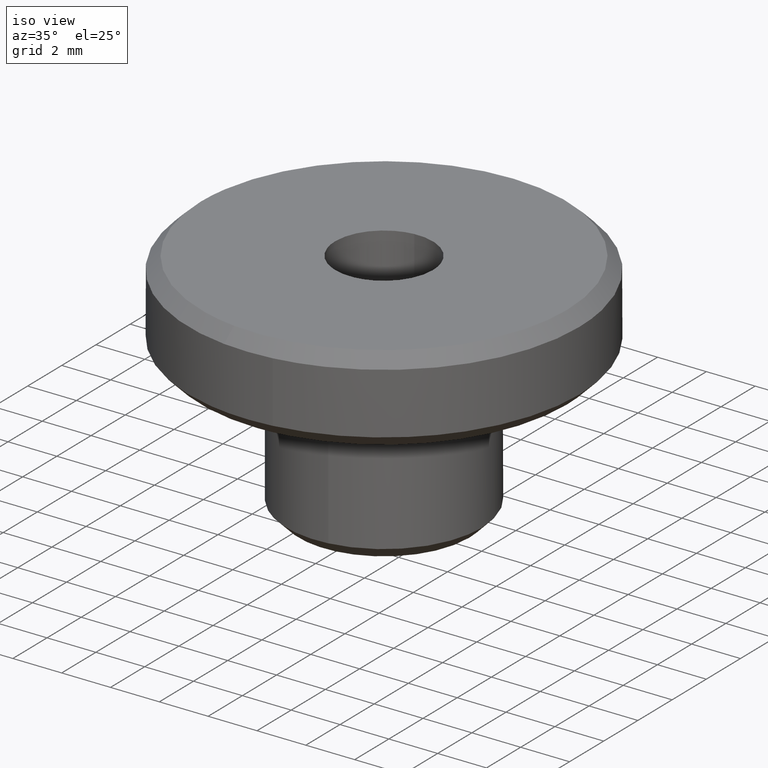
[diagram: clean part render]
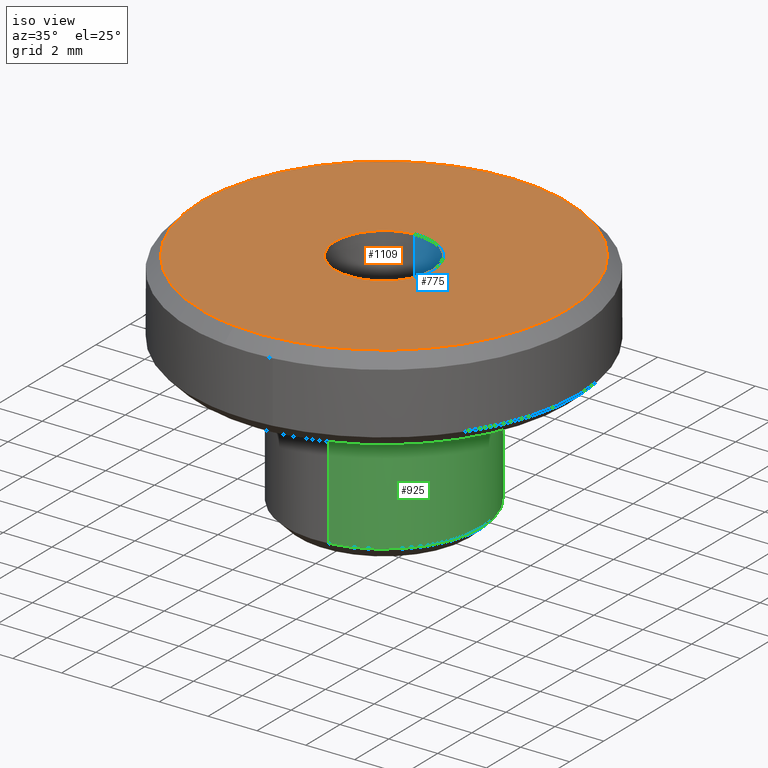
[diagram: same view with three faces highlighted in distinct colors, each labeled with its STEP entity id]
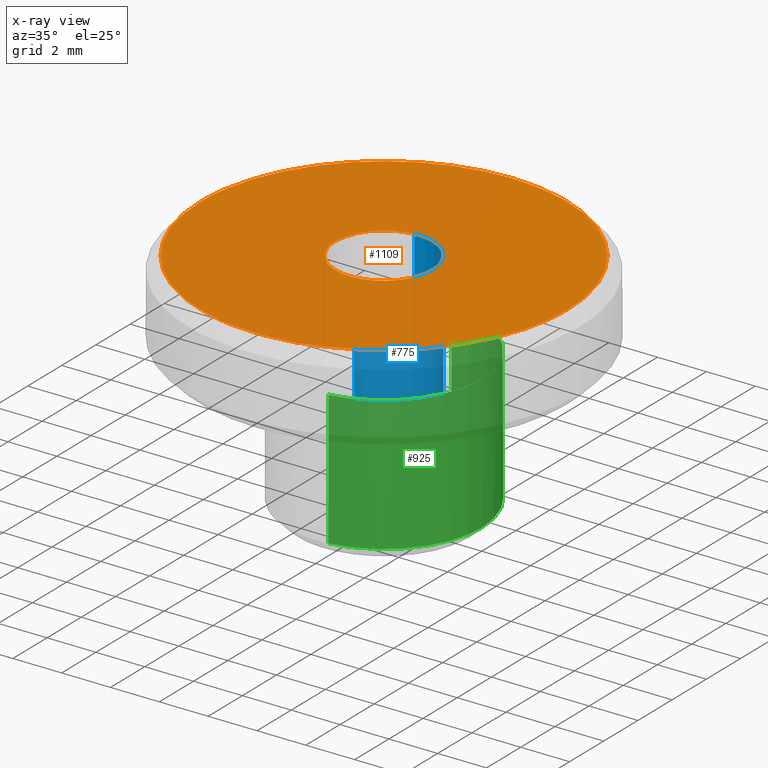
[diagram: x-ray of the same camera — body ghosted, the three highlighted faces saturated]
A machine part, iso view with three faces highlighted in distinct colors.
The next image is the same camera in x-ray (body ghosted, the three faces saturated) — at least one of them is partly hidden behind the body in this view.
Their STEP definitions:

[orange] entity #1109 — the highlighted face is a freeform B-spline surface patch.
#79=CARTESIAN_POINT('',(-0.930960015612381,-7.441996603691548,9.499999999998270));
#80=VERTEX_POINT('',#79);
#86=CARTESIAN_POINT('',(-7.500000000000010,0.0,9.500000000000000));
#87=VERTEX_POINT('',#86);
#88=CARTESIAN_POINT('',(-7.500000000000010,0.0,9.500000000000000));
#89=CARTESIAN_POINT('',(-7.500000000000008,-6.620239501102615,9.499999999999998));
#90=CARTESIAN_POINT('',(-0.930960015612380,-7.441996603691548,9.499999999998270));
#98=(BOUNDED_CURVE()B_SPLINE_CURVE(2,(#88,#89,#90),.UNSPECIFIED.,.F.,.U.)B_SPLINE_CURVE_WITH_KNOTS((3,3),(0.500000000000000,0.728526071028690),.UNSPECIFIED.)CURVE()GEOMETRIC_REPRESENTATION_ITEM()RATIONAL_B_SPLINE_CURVE((1.0,0.732265053894462,0.954005430273536))REPRESENTATION_ITEM(''));
#99=EDGE_CURVE('',#87,#80,#98,.T.);
#101=CARTESIAN_POINT('',(0.065449016252098,7.499714422983092,9.499999999998039));
#102=VERTEX_POINT('',#101);
#103=CARTESIAN_POINT('',(0.065449016252098,7.499714422983092,9.499999999998039));
#104=CARTESIAN_POINT('',(0.032725131169539,7.500000000000001,9.500000000000000));
#105=CARTESIAN_POINT('',(-1.065814E-014,7.500000000000000,9.500000000000000));
#106=CARTESIAN_POINT('',(-7.500000000000009,7.500000000000000,9.500000000000000));
#107=CARTESIAN_POINT('',(-7.500000000000010,0.0,9.500000000000000));
#115=(BOUNDED_CURVE()B_SPLINE_CURVE(2,(#103,#104,#105,#106,#107),.UNSPECIFIED.,.F.,.U.)B_SPLINE_CURVE_WITH_KNOTS((3,2,3),(0.248460105664342,0.250000000000000,0.500000000000000),.UNSPECIFIED.)CURVE()GEOMETRIC_REPRESENTATION_ITEM()RATIONAL_B_SPLINE_CURVE((0.996414028098853,0.998195901565586,1.0,0.707106781186547,1.0))REPRESENTATION_ITEM(''));
#116=EDGE_CURVE('',#102,#87,#115,.T.);
#226=CARTESIAN_POINT('',(7.499999999999989,0.0,9.500000000000000));
#227=VERTEX_POINT('',#226);
#228=CARTESIAN_POINT('',(7.499999999999989,0.0,9.500000000000000));
#229=CARTESIAN_POINT('',(7.499999999999988,7.434834079434003,9.500000000000000));
#230=CARTESIAN_POINT('',(0.065449016252098,7.499714422983092,9.499999999998039));
#238=(BOUNDED_CURVE()B_SPLINE_CURVE(2,(#228,#229,#230),.UNSPECIFIED.,.F.,.U.)B_SPLINE_CURVE_WITH_KNOTS((3,3),(0.0,0.248460105664342),.UNSPECIFIED.)CURVE()GEOMETRIC_REPRESENTATION_ITEM()RATIONAL_B_SPLINE_CURVE((1.0,0.708910879620962,0.996414028098852))REPRESENTATION_ITEM(''));
#239=EDGE_CURVE('',#227,#102,#238,.T.);
#241=CARTESIAN_POINT('',(-0.930960015612381,-7.441996603691548,9.499999999998270));
#242=CARTESIAN_POINT('',(-0.467286956514814,-7.500000000000000,9.500000000000000));
#243=CARTESIAN_POINT('',(-1.065814E-014,-7.500000000000000,9.500000000000000));
#244=CARTESIAN_POINT('',(7.499999999999989,-7.500000000000000,9.500000000000000));
#245=CARTESIAN_POINT('',(7.499999999999989,0.0,9.500000000000000));
#253=(BOUNDED_CURVE()B_SPLINE_CURVE(2,(#241,#242,#243,#244,#245),.UNSPECIFIED.,.F.,.U.)B_SPLINE_CURVE_WITH_KNOTS((3,2,3),(0.728526071028690,0.750000000000000,1.0),.UNSPECIFIED.)CURVE()GEOMETRIC_REPRESENTATION_ITEM()RATIONAL_B_SPLINE_CURVE((0.954005430273537,0.974841727292086,1.0,0.707106781186547,1.0))REPRESENTATION_ITEM(''));
#254=EDGE_CURVE('',#80,#227,#253,.T.);
#712=CARTESIAN_POINT('',(0.156918191470717,-1.993834667465072,9.500000000000000));
#713=VERTEX_POINT('',#712);
#719=CARTESIAN_POINT('',(1.999999999999989,0.0,9.500000000000000));
#720=VERTEX_POINT('',#719);
#721=CARTESIAN_POINT('',(1.999999999999989,0.0,9.500000000000000));
#722=CARTESIAN_POINT('',(1.999999999999990,-1.848780983288440,9.500000000000000));
#723=CARTESIAN_POINT('',(0.156918191470717,-1.993834667465072,9.500000000000000));
#731=(BOUNDED_CURVE()B_SPLINE_CURVE(2,(#721,#722,#723),.UNSPECIFIED.,.F.,.U.)B_SPLINE_CURVE_WITH_KNOTS((3,3),(0.0,0.236331300630181),.UNSPECIFIED.)CURVE()GEOMETRIC_REPRESENTATION_ITEM()RATIONAL_B_SPLINE_CURVE((1.0,0.723120658608226,0.969723356166419))REPRESENTATION_ITEM(''));
#732=EDGE_CURVE('',#720,#713,#731,.T.);
#734=CARTESIAN_POINT('',(-0.156918191470738,1.993834667465072,9.500000000000000));
#735=VERTEX_POINT('',#734);
#736=CARTESIAN_POINT('',(-0.156918191470738,1.993834667465073,9.500000000000000));
#737=CARTESIAN_POINT('',(-0.078580214030456,2.0,9.500000000000002));
#738=CARTESIAN_POINT('',(-1.065814E-014,2.0,9.500000000000000));
#739=CARTESIAN_POINT('',(1.999999999999989,2.000000000000000,9.500000000000000));
#740=CARTESIAN_POINT('',(1.999999999999989,0.0,9.500000000000000));
#748=(BOUNDED_CURVE()B_SPLINE_CURVE(2,(#736,#737,#738,#739,#740),.UNSPECIFIED.,.F.,.U.)B_SPLINE_CURVE_WITH_KNOTS((3,2,3),(0.736331300630181,0.750000000000000,1.0),.UNSPECIFIED.)CURVE()GEOMETRIC_REPRESENTATION_ITEM()RATIONAL_B_SPLINE_CURVE((0.969723356166419,0.983986122578322,1.0,0.707106781186548,1.0))REPRESENTATION_ITEM(''));
#749=EDGE_CURVE('',#735,#720,#748,.T.);
#825=CARTESIAN_POINT('',(-2.000000000000011,0.0,9.500000000000000));
#826=VERTEX_POINT('',#825);
#827=CARTESIAN_POINT('',(-2.000000000000011,0.0,9.500000000000000));
#828=CARTESIAN_POINT('',(-2.000000000000012,1.848780983288445,9.500000000000000));
#829=CARTESIAN_POINT('',(-0.156918191470738,1.993834667465073,9.500000000000000));
#837=(BOUNDED_CURVE()B_SPLINE_CURVE(2,(#827,#828,#829),.UNSPECIFIED.,.F.,.U.)B_SPLINE_CURVE_WITH_KNOTS((3,3),(0.500000000000000,0.736331300630181),.UNSPECIFIED.)CURVE()GEOMETRIC_REPRESENTATION_ITEM()RATIONAL_B_SPLINE_CURVE((1.0,0.723120658608226,0.969723356166420))REPRESENTATION_ITEM(''));
#838=EDGE_CURVE('',#826,#735,#837,.T.);
#840=CARTESIAN_POINT('',(0.156918191470717,-1.993834667465073,9.500000000000000));
#841=CARTESIAN_POINT('',(0.078580214030436,-2.000000000000000,9.500000000000000));
#842=CARTESIAN_POINT('',(-1.065814E-014,-2.0,9.500000000000000));
#843=CARTESIAN_POINT('',(-2.000000000000011,-2.000000000000000,9.500000000000000));
#844=CARTESIAN_POINT('',(-2.000000000000011,0.0,9.500000000000000));
#852=(BOUNDED_CURVE()B_SPLINE_CURVE(2,(#840,#841,#842,#843,#844),.UNSPECIFIED.,.F.,.U.)B_SPLINE_CURVE_WITH_KNOTS((3,2,3),(0.236331300630181,0.250000000000000,0.500000000000000),.UNSPECIFIED.)CURVE()GEOMETRIC_REPRESENTATION_ITEM()RATIONAL_B_SPLINE_CURVE((0.969723356166419,0.983986122578321,1.0,0.707106781186548,1.0))REPRESENTATION_ITEM(''));
#853=EDGE_CURVE('',#713,#826,#852,.T.);
#1092=CARTESIAN_POINT('',(-8.249249970927099,-8.248721004380286,9.500000000000000));
#1093=CARTESIAN_POINT('',(8.249250373258430,-8.248721004380286,9.500000000000000));
#1094=CARTESIAN_POINT('',(-8.249249970927099,8.248925120486318,9.500000000000000));
#1095=CARTESIAN_POINT('',(8.249250373258430,8.248925120486318,9.500000000000000));
#1096=B_SPLINE_SURFACE_WITH_KNOTS('',1,1,((#1092,#1094),(#1093,#1095)),.UNSPECIFIED.,.F.,.F.,.U.,(2,2),(2,2),(0.0,16.498500344185530),(0.0,16.497646124866609),.UNSPECIFIED.);
#1097=ORIENTED_EDGE('',*,*,#239,.T.);
#1098=ORIENTED_EDGE('',*,*,#116,.T.);
#1099=ORIENTED_EDGE('',*,*,#99,.T.);
#1100=ORIENTED_EDGE('',*,*,#254,.T.);
#1101=EDGE_LOOP('',(#1097,#1098,#1099,#1100));
#1102=FACE_OUTER_BOUND('',#1101,.T.);
#1103=ORIENTED_EDGE('',*,*,#838,.T.);
#1104=ORIENTED_EDGE('',*,*,#749,.T.);
#1105=ORIENTED_EDGE('',*,*,#732,.T.);
#1106=ORIENTED_EDGE('',*,*,#853,.T.);
#1107=EDGE_LOOP('',(#1103,#1104,#1105,#1106));
#1108=FACE_BOUND('',#1107,.T.);
#1109=ADVANCED_FACE('',(#1102,#1108),#1096,.T.);

[blue] entity #775 — the highlighted face is a freeform B-spline surface patch.
#677=CARTESIAN_POINT('',(0.156918191455680,-1.993834667466255,-0.237500000000000));
#678=CARTESIAN_POINT('',(2.150752858921936,-1.836916476010564,-0.237500000000000));
#679=CARTESIAN_POINT('',(1.993834667466245,0.156918191455691,-0.237500000000000));
#680=CARTESIAN_POINT('',(1.836916476010554,2.150752858921946,-0.237500000000000));
#681=CARTESIAN_POINT('',(-0.156918191455702,1.993834667466255,-0.237500000000000));
#682=CARTESIAN_POINT('',(0.156918191455680,-1.993834667466255,9.743437500000001));
#683=CARTESIAN_POINT('',(2.150752858921936,-1.836916476010564,9.743437500000001));
#684=CARTESIAN_POINT('',(1.993834667466245,0.156918191455691,9.743437500000001));
#685=CARTESIAN_POINT('',(1.836916476010554,2.150752858921946,9.743437500000001));
#686=CARTESIAN_POINT('',(-0.156918191455702,1.993834667466255,9.743437500000001));
#694=(BOUNDED_SURFACE()B_SPLINE_SURFACE(2,1,((#677,#682),(#678,#683),(#679,#684),(#680,#685),(#681,#686)),.UNSPECIFIED.,.F.,.F.,.U.)B_SPLINE_SURFACE_WITH_KNOTS((3,2,3),(2,2),(0.0,3.313708498984759,6.627416997969519),(0.0,9.980937500000003),.UNSPECIFIED.)GEOMETRIC_REPRESENTATION_ITEM()RATIONAL_B_SPLINE_SURFACE(((1.0,1.0),(0.707106781186548,0.707106781186548),(1.0,1.0),(0.707106781186548,0.707106781186548),(1.0,1.0)))REPRESENTATION_ITEM('')SURFACE());
#695=CARTESIAN_POINT('',(1.999999999999989,0.0,0.0));
#696=VERTEX_POINT('',#695);
#697=CARTESIAN_POINT('',(0.156918191470717,-1.993834667465072,-3.608225E-016));
#698=VERTEX_POINT('',#697);
#699=CARTESIAN_POINT('',(1.999999999999989,0.0,0.0));
#700=CARTESIAN_POINT('',(1.999999999999989,-1.848780983288442,0.0));
#701=CARTESIAN_POINT('',(0.156918191470717,-1.993834667465072,-3.608225E-016));
#709=(BOUNDED_CURVE()B_SPLINE_CURVE(2,(#699,#700,#701),.UNSPECIFIED.,.F.,.U.)B_SPLINE_CURVE_WITH_KNOTS((3,3),(0.0,0.236331300630181),.UNSPECIFIED.)CURVE()GEOMETRIC_REPRESENTATION_ITEM()RATIONAL_B_SPLINE_CURVE((1.0,0.723120658608226,0.969723356166420))REPRESENTATION_ITEM(''));
#710=EDGE_CURVE('',#696,#698,#709,.T.);
#711=ORIENTED_EDGE('',*,*,#710,.T.);
#712=CARTESIAN_POINT('',(0.156918191470717,-1.993834667465072,9.500000000000000));
#713=VERTEX_POINT('',#712);
#714=CARTESIAN_POINT('',(0.156918191470717,-1.993834667465072,-3.608225E-016));
#715=CARTESIAN_POINT('',(0.156918191470717,-1.993834667465072,9.500000000000000));
#716=QUASI_UNIFORM_CURVE('',1,(#714,#715),.UNSPECIFIED.,.F.,.U.);
#717=EDGE_CURVE('',#698,#713,#716,.T.);
#718=ORIENTED_EDGE('',*,*,#717,.T.);
#719=CARTESIAN_POINT('',(1.999999999999989,0.0,9.500000000000000));
#720=VERTEX_POINT('',#719);
#721=CARTESIAN_POINT('',(1.999999999999989,0.0,9.500000000000000));
#722=CARTESIAN_POINT('',(1.999999999999990,-1.848780983288440,9.500000000000000));
#723=CARTESIAN_POINT('',(0.156918191470717,-1.993834667465072,9.500000000000000));
#731=(BOUNDED_CURVE()B_SPLINE_CURVE(2,(#721,#722,#723),.UNSPECIFIED.,.F.,.U.)B_SPLINE_CURVE_WITH_KNOTS((3,3),(0.0,0.236331300630181),.UNSPECIFIED.)CURVE()GEOMETRIC_REPRESENTATION_ITEM()RATIONAL_B_SPLINE_CURVE((1.0,0.723120658608226,0.969723356166419))REPRESENTATION_ITEM(''));
#732=EDGE_CURVE('',#720,#713,#731,.T.);
#733=ORIENTED_EDGE('',*,*,#732,.F.);
#734=CARTESIAN_POINT('',(-0.156918191470738,1.993834667465072,9.500000000000000));
#735=VERTEX_POINT('',#734);
#736=CARTESIAN_POINT('',(-0.156918191470738,1.993834667465073,9.500000000000000));
#737=CARTESIAN_POINT('',(-0.078580214030456,2.0,9.500000000000002));
#738=CARTESIAN_POINT('',(-1.065814E-014,2.0,9.500000000000000));
#739=CARTESIAN_POINT('',(1.999999999999989,2.000000000000000,9.500000000000000));
#740=CARTESIAN_POINT('',(1.999999999999989,0.0,9.500000000000000));
#748=(BOUNDED_CURVE()B_SPLINE_CURVE(2,(#736,#737,#738,#739,#740),.UNSPECIFIED.,.F.,.U.)B_SPLINE_CURVE_WITH_KNOTS((3,2,3),(0.736331300630181,0.750000000000000,1.0),.UNSPECIFIED.)CURVE()GEOMETRIC_REPRESENTATION_ITEM()RATIONAL_B_SPLINE_CURVE((0.969723356166419,0.983986122578322,1.0,0.707106781186548,1.0))REPRESENTATION_ITEM(''));
#749=EDGE_CURVE('',#735,#720,#748,.T.);
#750=ORIENTED_EDGE('',*,*,#749,.F.);
#751=CARTESIAN_POINT('',(-0.156918191470738,1.993834667465072,-3.608225E-016));
#752=VERTEX_POINT('',#751);
#753=CARTESIAN_POINT('',(-0.156918191470738,1.993834667465072,-3.608225E-016));
#754=CARTESIAN_POINT('',(-0.156918191470738,1.993834667465072,9.500000000000000));
#755=QUASI_UNIFORM_CURVE('',1,(#753,#754),.UNSPECIFIED.,.F.,.U.);
#756=EDGE_CURVE('',#752,#735,#755,.T.);
#757=ORIENTED_EDGE('',*,*,#756,.F.);
#758=CARTESIAN_POINT('',(-0.156918191470738,1.993834667465073,-3.608225E-016));
#759=CARTESIAN_POINT('',(-0.078580214030456,2.0,0.0));
#760=CARTESIAN_POINT('',(-1.065814E-014,2.0,0.0));
#761=CARTESIAN_POINT('',(1.999999999999989,2.000000000000000,0.0));
#762=CARTESIAN_POINT('',(1.999999999999989,0.0,0.0));
#770=(BOUNDED_CURVE()B_SPLINE_CURVE(2,(#758,#759,#760,#761,#762),.UNSPECIFIED.,.F.,.U.)B_SPLINE_CURVE_WITH_KNOTS((3,2,3),(0.736331300630181,0.750000000000000,1.0),.UNSPECIFIED.)CURVE()GEOMETRIC_REPRESENTATION_ITEM()RATIONAL_B_SPLINE_CURVE((0.969723356166419,0.983986122578322,1.0,0.707106781186548,1.0))REPRESENTATION_ITEM(''));
#771=EDGE_CURVE('',#752,#696,#770,.T.);
#772=ORIENTED_EDGE('',*,*,#771,.T.);
#773=EDGE_LOOP('',(#711,#718,#733,#750,#757,#772));
#774=FACE_OUTER_BOUND('',#773,.T.);
#775=ADVANCED_FACE('',(#774),#694,.F.);

[green] entity #925 — the highlighted face is a freeform B-spline surface patch.
#500=CARTESIAN_POINT('',(0.496510696364964,-3.969065019421251,0.499999999999956));
#501=VERTEX_POINT('',#500);
#558=CARTESIAN_POINT('',(-0.034904604637149,3.999847705671220,0.499999999999363));
#559=VERTEX_POINT('',#558);
#565=CARTESIAN_POINT('',(3.999999999999990,0.0,0.499999999999945));
#566=VERTEX_POINT('',#565);
#567=CARTESIAN_POINT('',(3.999999999999990,0.0,0.499999999999945));
#568=CARTESIAN_POINT('',(3.999999999999990,4.000000000000000,0.499999999999945));
#569=CARTESIAN_POINT('',(-1.065814E-014,4.0,0.499999999999945));
#570=CARTESIAN_POINT('',(-0.017452634560741,4.0,0.499999999999945));
#571=CARTESIAN_POINT('',(-0.034904604637149,3.999847705671220,0.499999999999363));
#579=(BOUNDED_CURVE()B_SPLINE_CURVE(2,(#567,#568,#569,#570,#571),.UNSPECIFIED.,.F.,.U.)B_SPLINE_CURVE_WITH_KNOTS((3,2,3),(0.500000000000000,0.750000000000000,0.751539826633849),.UNSPECIFIED.)CURVE()GEOMETRIC_REPRESENTATION_ITEM()RATIONAL_B_SPLINE_CURVE((1.0,0.707106781186548,1.0,0.998195980883189,0.996414184779850))REPRESENTATION_ITEM(''));
#580=EDGE_CURVE('',#566,#559,#579,.T.);
#582=CARTESIAN_POINT('',(0.496510696364964,-3.969065019421251,0.499999999999956));
#583=CARTESIAN_POINT('',(3.999999999999990,-3.530795576783641,0.499999999999945));
#584=CARTESIAN_POINT('',(3.999999999999990,0.0,0.499999999999945));
#592=(BOUNDED_CURVE()B_SPLINE_CURVE(2,(#582,#583,#584),.UNSPECIFIED.,.F.,.U.)B_SPLINE_CURVE_WITH_KNOTS((3,3),(0.271473873225641,0.500000000000000),.UNSPECIFIED.)CURVE()GEOMETRIC_REPRESENTATION_ITEM()RATIONAL_B_SPLINE_CURVE((0.954005538454358,0.732264988584347,1.0))REPRESENTATION_ITEM(''));
#593=EDGE_CURVE('',#501,#566,#592,.T.);
#859=CARTESIAN_POINT('',(0.496512008319306,-3.969064855302155,0.362499999999943));
#860=CARTESIAN_POINT('',(4.030931322009768,-3.526925032532884,0.362499999999943));
#861=CARTESIAN_POINT('',(3.999847692256673,0.034906141993496,0.362499999999943));
#862=CARTESIAN_POINT('',(3.964941550263179,4.034753834250179,0.362499999999943));
#863=CARTESIAN_POINT('',(-0.034906141993506,3.999847692256684,0.362499999999943));
#864=CARTESIAN_POINT('',(0.496512008319306,-3.969064855302155,6.140937500000002));
#865=CARTESIAN_POINT('',(4.030931322009768,-3.526925032532884,6.140937500000003));
#866=CARTESIAN_POINT('',(3.999847692256673,0.034906141993496,6.140937500000002));
#867=CARTESIAN_POINT('',(3.964941550263179,4.034753834250179,6.140937500000002));
#868=CARTESIAN_POINT('',(-0.034906141993506,3.999847692256684,6.140937500000002));
#876=(BOUNDED_SURFACE()B_SPLINE_SURFACE(2,1,((#859,#864),(#860,#865),(#861,#866),(#862,#867),(#863,#868)),.UNSPECIFIED.,.F.,.F.,.U.)B_SPLINE_SURFACE_WITH_KNOTS((3,2,3),(2,2),(0.0,6.097223638131957,12.724640636101480),(0.0,5.778437500000059),.UNSPECIFIED.)GEOMETRIC_REPRESENTATION_ITEM()RATIONAL_B_SPLINE_SURFACE(((0.956886118190660,0.956886118190660),(0.730538238691624,0.730538238691624),(1.0,1.0),(0.707106781186548,0.707106781186548),(1.0,1.0)))REPRESENTATION_ITEM('')SURFACE());
#877=ORIENTED_EDGE('',*,*,#593,.T.);
#878=ORIENTED_EDGE('',*,*,#580,.T.);
#879=CARTESIAN_POINT('',(-0.034902881422557,3.999847720708598,6.000000000000001));
#880=VERTEX_POINT('',#879);
#881=CARTESIAN_POINT('',(-0.034904604637149,3.999847705671220,0.499999999999363));
#882=CARTESIAN_POINT('',(-0.034902881422557,3.999847720708598,6.000000000000001));
#883=QUASI_UNIFORM_CURVE('',1,(#881,#882),.UNSPECIFIED.,.F.,.U.);
#884=EDGE_CURVE('',#559,#880,#883,.T.);
#885=ORIENTED_EDGE('',*,*,#884,.T.);
#886=CARTESIAN_POINT('',(3.999999999999990,0.0,6.0));
#887=VERTEX_POINT('',#886);
#888=CARTESIAN_POINT('',(-0.034902881422557,3.999847720708598,6.000000000000001));
#889=CARTESIAN_POINT('',(-0.017451772904238,4.000000000000001,6.0));
#890=CARTESIAN_POINT('',(-1.065814E-014,4.0,6.0));
#891=CARTESIAN_POINT('',(3.999999999999990,4.000000000000000,6.0));
#892=CARTESIAN_POINT('',(3.999999999999990,0.0,6.0));
#900=(BOUNDED_CURVE()B_SPLINE_CURVE(2,(#888,#889,#890,#891,#892),.UNSPECIFIED.,.F.,.U.)B_SPLINE_CURVE_WITH_KNOTS((3,2,3),(0.248460249252010,0.250000000000000,0.500000000000000),.UNSPECIFIED.)CURVE()GEOMETRIC_REPRESENTATION_ITEM()RATIONAL_B_SPLINE_CURVE((0.996414360401140,0.998196069789003,1.0,0.707106781186548,1.0))REPRESENTATION_ITEM(''));
#901=EDGE_CURVE('',#880,#887,#900,.T.);
#902=ORIENTED_EDGE('',*,*,#901,.T.);
#903=CARTESIAN_POINT('',(0.496507199149395,-3.969065456901576,6.0));
#904=VERTEX_POINT('',#903);
#905=CARTESIAN_POINT('',(3.999999999999990,0.0,6.0));
#906=CARTESIAN_POINT('',(3.999999999999990,-3.530798712080334,6.0));
#907=CARTESIAN_POINT('',(0.496507199149395,-3.969065456901576,6.0));
#915=(BOUNDED_CURVE()B_SPLINE_CURVE(2,(#905,#906,#907),.UNSPECIFIED.,.F.,.U.)B_SPLINE_CURVE_WITH_KNOTS((3,3),(0.500000000000000,0.728526275371378),.UNSPECIFIED.)CURVE()GEOMETRIC_REPRESENTATION_ITEM()RATIONAL_B_SPLINE_CURVE((1.0,0.732264814492111,0.954005826824084))REPRESENTATION_ITEM(''));
#916=EDGE_CURVE('',#887,#904,#915,.T.);
#917=ORIENTED_EDGE('',*,*,#916,.T.);
#918=CARTESIAN_POINT('',(0.496510696364964,-3.969065019421251,0.499999999999956));
#919=CARTESIAN_POINT('',(0.496507199149395,-3.969065456901576,6.0));
#920=QUASI_UNIFORM_CURVE('',1,(#918,#919),.UNSPECIFIED.,.F.,.U.);
#921=EDGE_CURVE('',#501,#904,#920,.T.);
#922=ORIENTED_EDGE('',*,*,#921,.F.);
#923=EDGE_LOOP('',(#877,#878,#885,#902,#917,#922));
#924=FACE_OUTER_BOUND('',#923,.T.);
#925=ADVANCED_FACE('',(#924),#876,.T.);